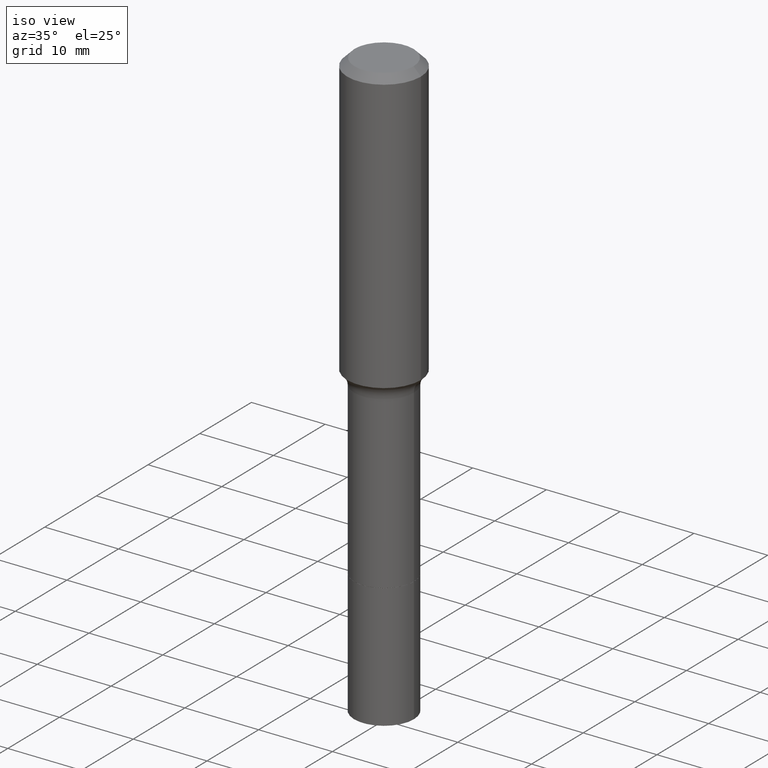
[diagram: clean part render]
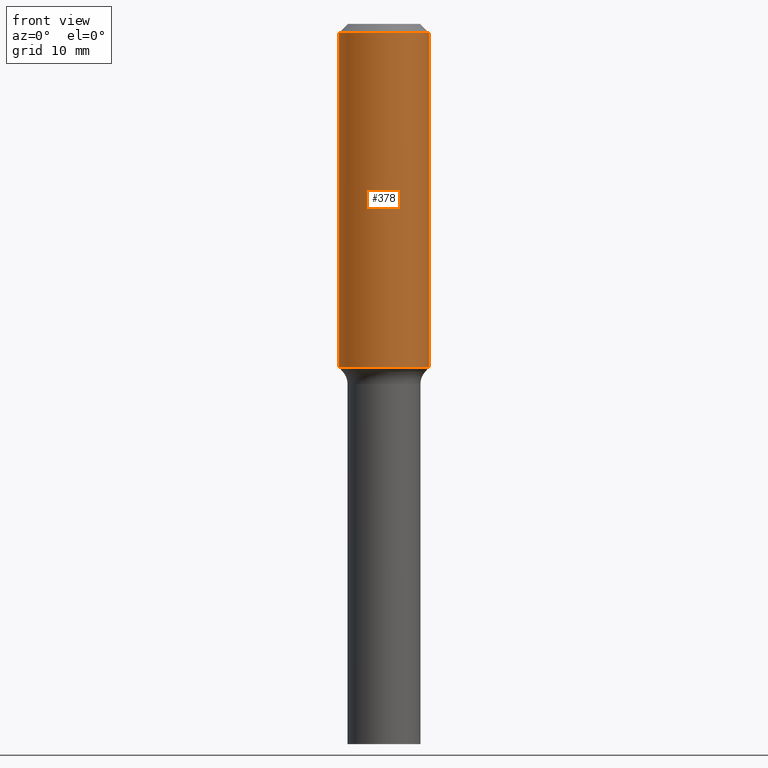
[diagram: tour spotlight — one face highlighted and labeled with its STEP entity id]
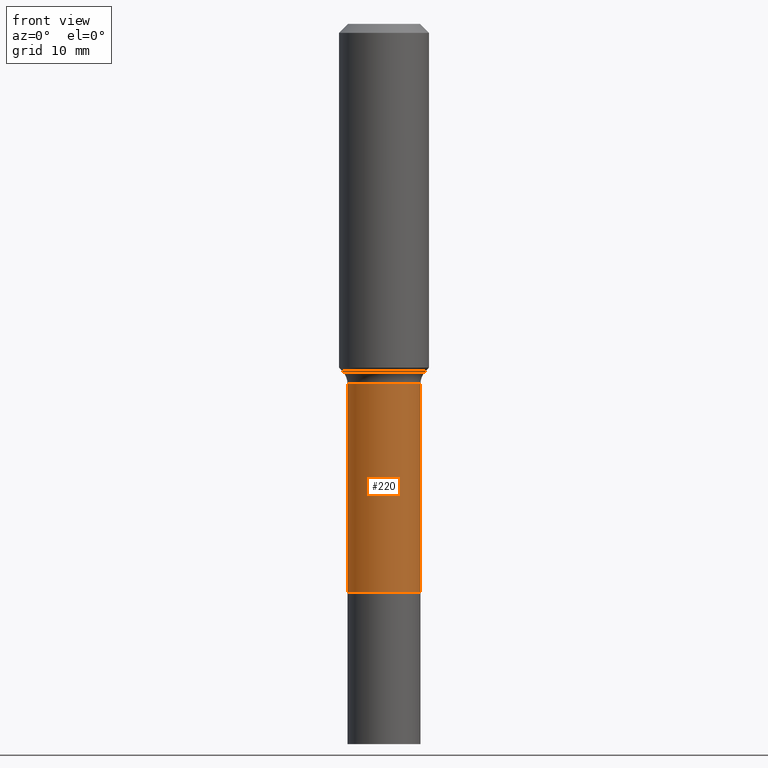
[diagram: tour spotlight — one face highlighted and labeled with its STEP entity id]
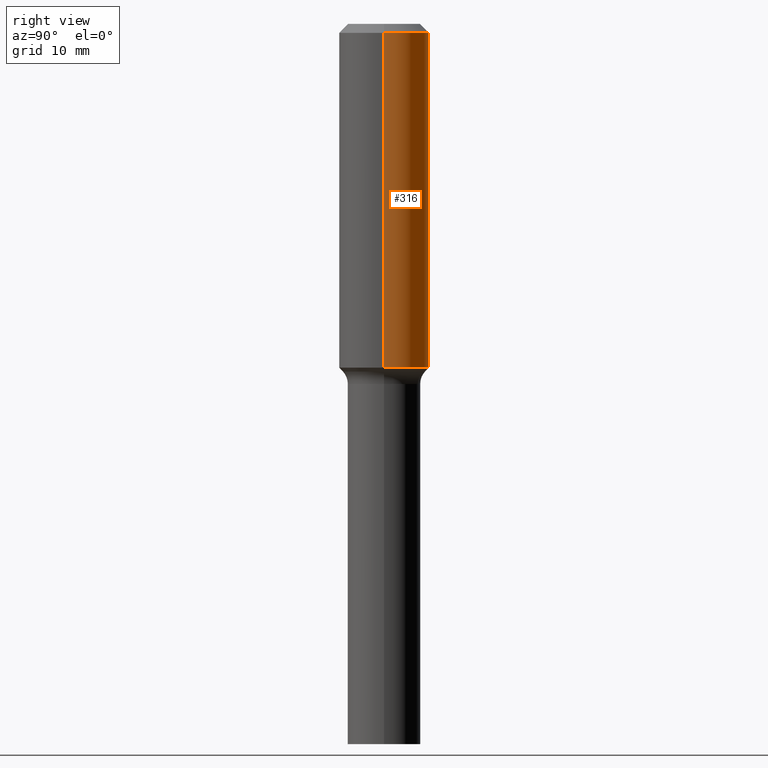
[diagram: tour spotlight — one face highlighted and labeled with its STEP entity id]
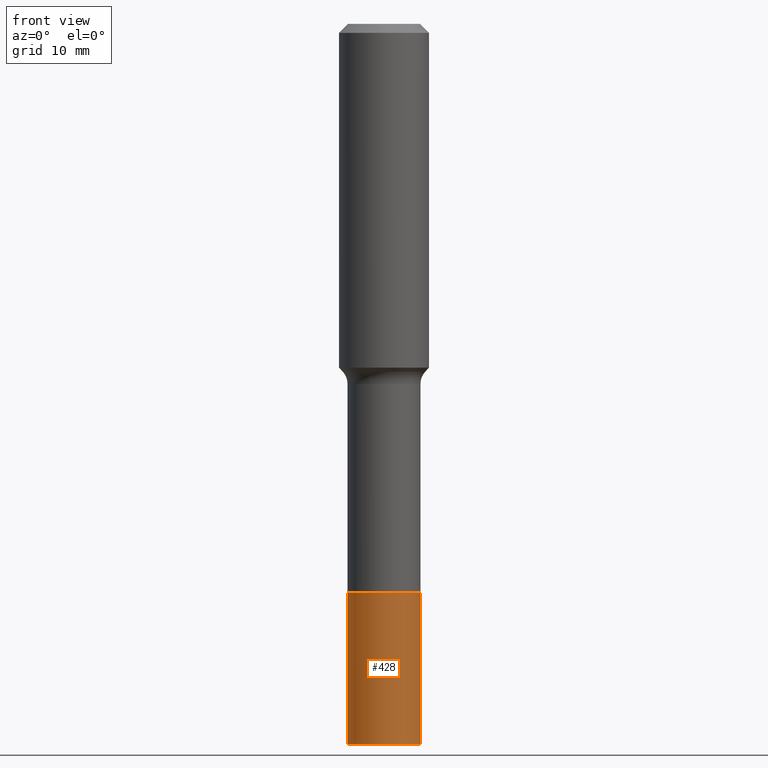
[diagram: tour spotlight — one face highlighted and labeled with its STEP entity id]
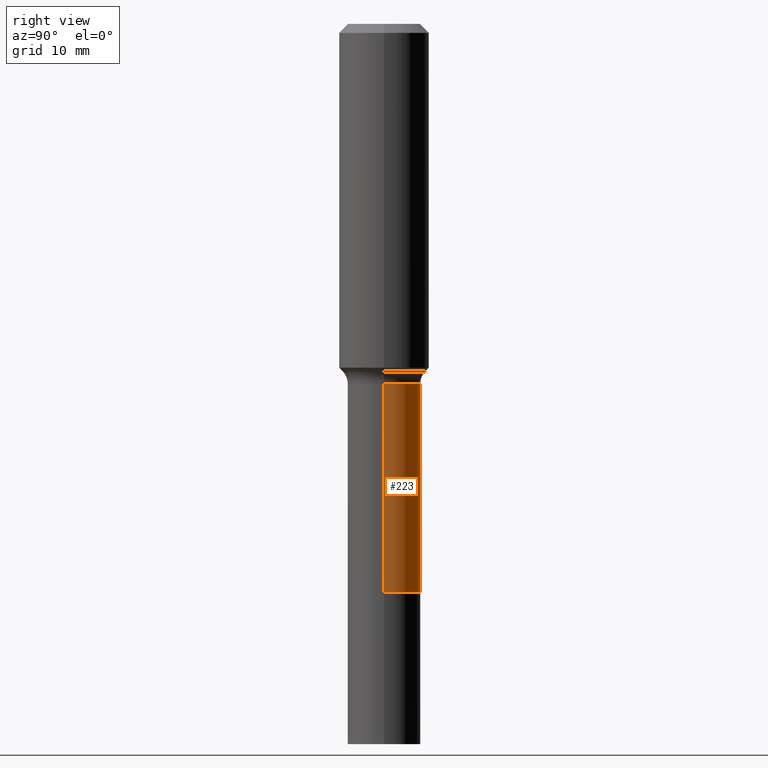
[diagram: tour spotlight — one face highlighted and labeled with its STEP entity id]
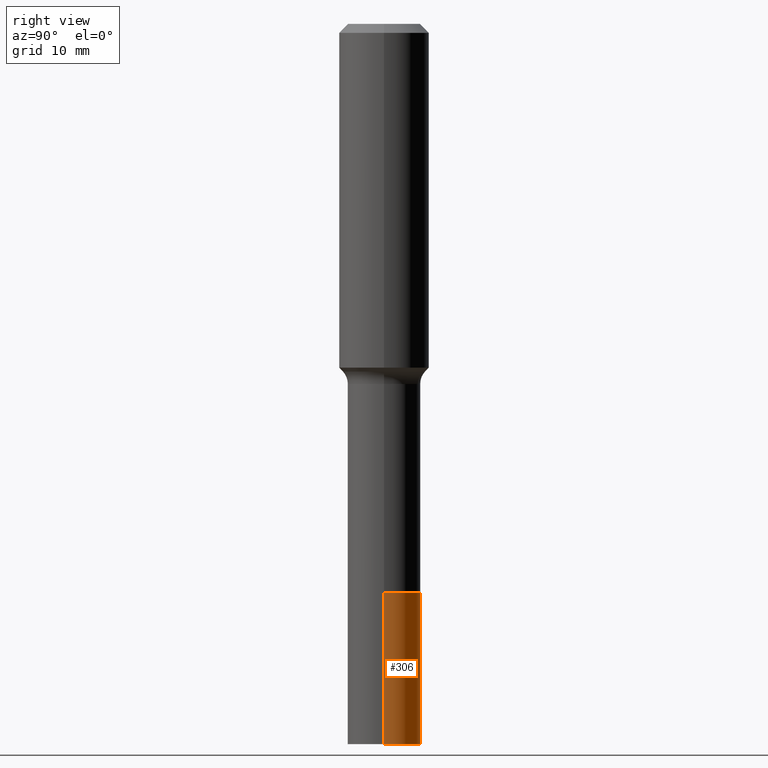
[diagram: tour spotlight — one face highlighted and labeled with its STEP entity id]
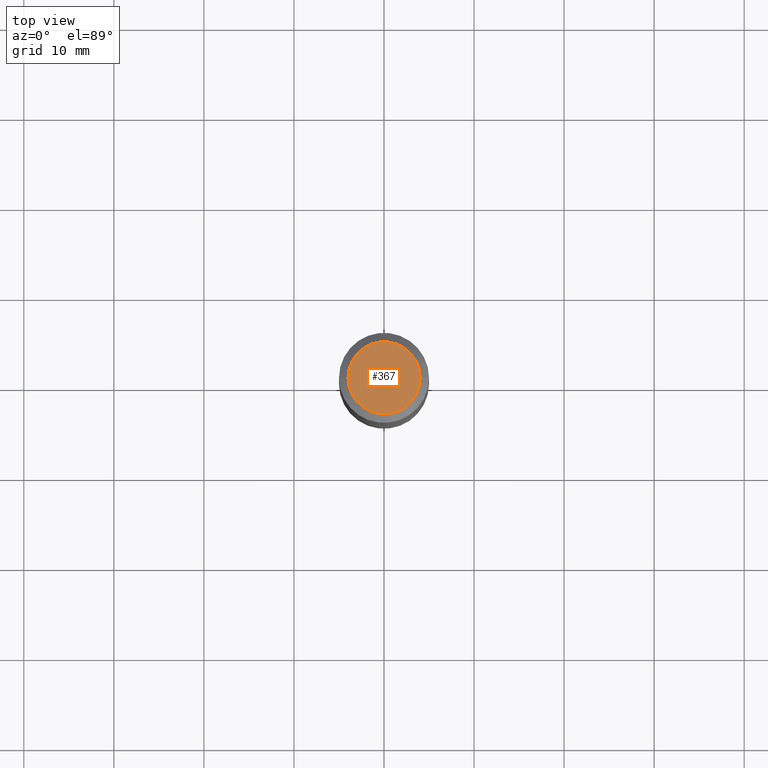
[diagram: tour spotlight — one face highlighted and labeled with its STEP entity id]
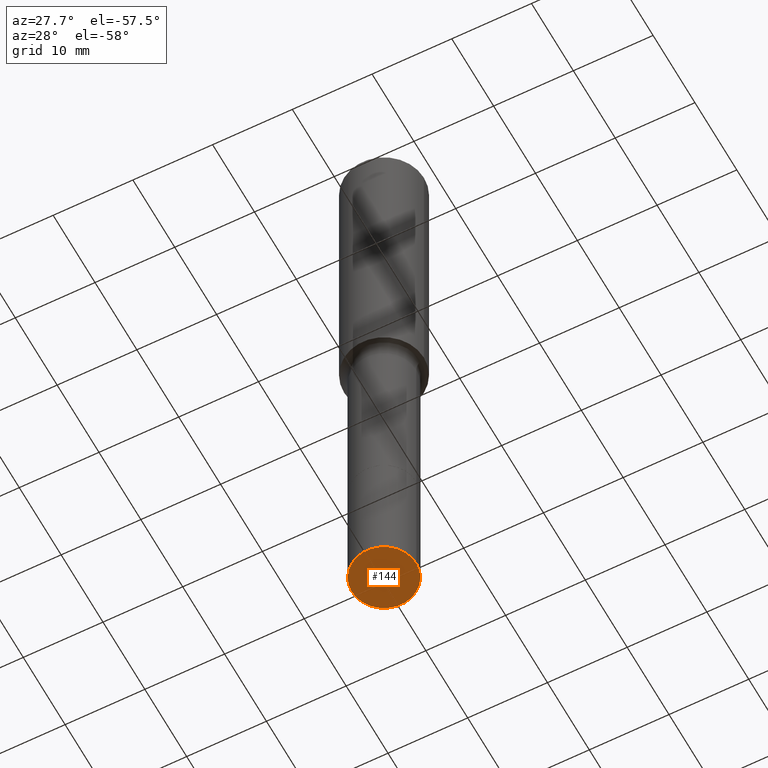
[diagram: tour spotlight — one face highlighted and labeled with its STEP entity id]
A machine part: a face-by-face anatomy tour. The part has 18 B-rep faces; the first image is the clean iso view, then the 8 largest visible faces are spotlighted one at a time (largest first), each with its STEP entity span.

Face 1 — front view, entity #378. In plain terms, the highlighted cylindrical surface (partial cylindrical patch) has radius 5 mm, axis along (-0, 0, 1).
Definition (entity closure, byte-faithful):
#3 = DIRECTION ( 'NONE',  ( 1.000000000000000000, -6.982962677686266711E-15, 0.000000000000000000 ) ) ;
#6 = DIRECTION ( 'NONE',  ( -2.445468806185136597E-29, 3.491481338843145583E-15, 1.000000000000000000 ) ) ;
#29 = DIRECTION ( 'NONE',  ( -2.445468806185136877E-29, 3.491481338843145188E-15, 1.000000000000000000 ) ) ;
#39 = DIRECTION ( 'NONE',  ( -2.445468806185136597E-29, 3.491481338843145583E-15, 1.000000000000000000 ) ) ;
#43 = EDGE_CURVE ( 'NONE', #61, #251, #132, .T. ) ;
#61 = VERTEX_POINT ( 'NONE', #434 ) ;
#66 = CARTESIAN_POINT ( 'NONE',  ( 0.000000000000000000, 0.000000000000000000, 0.000000000000000000 ) ) ;
#82 = LINE ( 'NONE', #108, #286 ) ;
#100 = DIRECTION ( 'NONE',  ( -2.445468806185136597E-29, 3.491481338843145583E-15, 1.000000000000000000 ) ) ;
#105 = DIRECTION ( 'NONE',  ( 1.000000000000000000, -6.982962677686266711E-15, 4.876176775795935793E-29 ) ) ;
#108 = CARTESIAN_POINT ( 'NONE',  ( -0.1968500000000001082, 1.398703375343757985E-15, -9.682923725166787881E-30 ) ) ;
#119 = AXIS2_PLACEMENT_3D ( 'NONE', #397, #39, #442 ) ;
#120 = AXIS2_PLACEMENT_3D ( 'NONE', #481, #6, #3 ) ;
#130 = ORIENTED_EDGE ( 'NONE', *, *, #192, .T. ) ;
#132 = LINE ( 'NONE', #136, #447 ) ;
#136 = CARTESIAN_POINT ( 'NONE',  ( 0.1968500000000001082, -1.374596203102542397E-15, 9.598753983154305062E-30 ) ) ;
#186 = VERTEX_POINT ( 'NONE', #318 ) ;
#189 = EDGE_CURVE ( 'NONE', #213, #186, #82, .T. ) ;
#192 = EDGE_CURVE ( 'NONE', #213, #61, #360, .T. ) ;
#202 = DIRECTION ( 'NONE',  ( -2.445468806185136877E-29, 3.491481338843145188E-15, 1.000000000000000000 ) ) ;
#213 = VERTEX_POINT ( 'NONE', #365 ) ;
#216 = EDGE_LOOP ( 'NONE', ( #497, #130, #500, #371 ) ) ;
#218 = CIRCLE ( 'NONE', #119, 0.1968500000000000250 ) ;
#238 = CYLINDRICAL_SURFACE ( 'NONE', #348, 0.1968500000000001082 ) ;
#251 = VERTEX_POINT ( 'NONE', #449 ) ;
#286 = VECTOR ( 'NONE', #202, 39.37007874015748143 ) ;
#315 = FACE_OUTER_BOUND ( 'NONE', #216, .T. ) ;
#318 = CARTESIAN_POINT ( 'NONE',  ( -0.1968500000000000250, -1.293840745044226107E-15, -0.03937000000000025896 ) ) ;
#348 = AXIS2_PLACEMENT_3D ( 'NONE', #66, #100, #105 ) ;
#360 = CIRCLE ( 'NONE', #120, 0.1968500000000001915 ) ;
#365 = CARTESIAN_POINT ( 'NONE',  ( -0.1968500000000001915, -3.848925245121954815E-15, -1.502980572195881548 ) ) ;
#371 = ORIENTED_EDGE ( 'NONE', *, *, #505, .F. ) ;
#378 = ADVANCED_FACE ( 'NONE', ( #315 ), #238, .T. ) ;
#397 = CARTESIAN_POINT ( 'NONE',  ( 9.627810689950945397E-31, -1.374596203102555315E-16, -0.03937000000000025896 ) ) ;
#434 = CARTESIAN_POINT ( 'NONE',  ( 0.1968500000000001915, -6.622224823568255789E-15, -1.502980572195881548 ) ) ;
#442 = DIRECTION ( 'NONE',  ( 1.000000000000000000, -6.982962677686265922E-15, 0.000000000000000000 ) ) ;
#447 = VECTOR ( 'NONE', #29, 39.37007874015748143 ) ;
#449 = CARTESIAN_POINT ( 'NONE',  ( 0.1968500000000000250, -1.512055823412797189E-15, -0.03937000000000025896 ) ) ;
#481 = CARTESIAN_POINT ( 'NONE',  ( 3.675492105607316008E-29, -5.247628620465713392E-15, -1.502980572195881548 ) ) ;
#497 = ORIENTED_EDGE ( 'NONE', *, *, #189, .F. ) ;
#500 = ORIENTED_EDGE ( 'NONE', *, *, #43, .T. ) ;
#505 = EDGE_CURVE ( 'NONE', #186, #251, #218, .T. ) ;

Face 2 — front view, entity #220. In plain terms, the highlighted cylindrical surface (edge-blend (fillet) strip) has radius 4.05 mm, axis along (-0, 0, 1).
Definition (entity closure, byte-faithful):
#4 = EDGE_CURVE ( 'NONE', #18, #330, #482, .T. ) ;
#13 = CARTESIAN_POINT ( 'NONE',  ( 0.1594500000000000639, -9.790113674116178555E-15, -2.485100000000000087 ) ) ;
#15 = VERTEX_POINT ( 'NONE', #518 ) ;
#16 = LINE ( 'NONE', #374, #241 ) ;
#18 = VERTEX_POINT ( 'NONE', #400 ) ;
#47 = ORIENTED_EDGE ( 'NONE', *, *, #324, .F. ) ;
#68 = DIRECTION ( 'NONE',  ( 1.000000000000000000, -6.982962677686269866E-15, 0.000000000000000000 ) ) ;
#76 = EDGE_CURVE ( 'NONE', #292, #330, #465, .T. ) ;
#91 = VECTOR ( 'NONE', #143, 39.37007874015748143 ) ;
#122 = ORIENTED_EDGE ( 'NONE', *, *, #76, .T. ) ;
#124 = EDGE_LOOP ( 'NONE', ( #47, #377, #122, #381 ) ) ;
#128 = CIRCLE ( 'NONE', #436, 0.1594500000000000639 ) ;
#143 = DIRECTION ( 'NONE',  ( -2.445468806185136877E-29, 3.491481338843145188E-15, 1.000000000000000000 ) ) ;
#159 = CYLINDRICAL_SURFACE ( 'NONE', #219, 0.1594499999999999806 ) ;
#178 = DIRECTION ( 'NONE',  ( -2.445468806185136597E-29, 3.491481338843145583E-15, 1.000000000000000000 ) ) ;
#193 = CARTESIAN_POINT ( 'NONE',  ( 0.1594499999999999806, -1.113433398957075208E-15, 7.775063869006620076E-30 ) ) ;
#205 = FACE_OUTER_BOUND ( 'NONE', #124, .T. ) ;
#219 = AXIS2_PLACEMENT_3D ( 'NONE', #444, #323, #361 ) ;
#220 = ADVANCED_FACE ( 'NONE', ( #205 ), #159, .T. ) ;
#241 = VECTOR ( 'NONE', #494, 39.37007874015748143 ) ;
#292 = VERTEX_POINT ( 'NONE', #13 ) ;
#323 = DIRECTION ( 'NONE',  ( -2.445468806185136597E-29, 3.491481338843145583E-15, 1.000000000000000000 ) ) ;
#324 = EDGE_CURVE ( 'NONE', #15, #18, #16, .T. ) ;
#330 = VERTEX_POINT ( 'NONE', #333 ) ;
#333 = CARTESIAN_POINT ( 'NONE',  ( 0.1594499999999999251, -6.611119915099492761E-15, -1.574600000000000222 ) ) ;
#361 = DIRECTION ( 'NONE',  ( 1.000000000000000000, -6.982962677686267499E-15, 4.876176775795936914E-29 ) ) ;
#374 = CARTESIAN_POINT ( 'NONE',  ( -0.1594499999999999806, 1.132960392169479609E-15, -7.843242001411446535E-30 ) ) ;
#377 = ORIENTED_EDGE ( 'NONE', *, *, #412, .T. ) ;
#381 = ORIENTED_EDGE ( 'NONE', *, *, #4, .F. ) ;
#389 = CARTESIAN_POINT ( 'NONE',  ( 3.850635182219116347E-29, -5.497686516142417553E-15, -1.574600000000000222 ) ) ;
#395 = DIRECTION ( 'NONE',  ( -2.445468806185136597E-29, 3.491481338843145583E-15, 1.000000000000000000 ) ) ;
#400 = CARTESIAN_POINT ( 'NONE',  ( -0.1594499999999999251, -5.954223003481279658E-15, -1.574600000000000222 ) ) ;
#412 = EDGE_CURVE ( 'NONE', #15, #292, #128, .T. ) ;
#436 = AXIS2_PLACEMENT_3D ( 'NONE', #517, #178, #477 ) ;
#438 = AXIS2_PLACEMENT_3D ( 'NONE', #389, #395, #68 ) ;
#444 = CARTESIAN_POINT ( 'NONE',  ( 0.000000000000000000, 0.000000000000000000, 0.000000000000000000 ) ) ;
#465 = LINE ( 'NONE', #193, #91 ) ;
#477 = DIRECTION ( 'NONE',  ( 1.000000000000000000, -6.982962677686269866E-15, 0.000000000000000000 ) ) ;
#482 = CIRCLE ( 'NONE', #438, 0.1594499999999999251 ) ;
#494 = DIRECTION ( 'NONE',  ( -2.445468806185136877E-29, 3.491481338843145188E-15, 1.000000000000000000 ) ) ;
#517 = CARTESIAN_POINT ( 'NONE',  ( 6.077234530250682958E-29, -8.676680275159101770E-15, -2.485100000000000087 ) ) ;
#518 = CARTESIAN_POINT ( 'NONE',  ( -0.1594500000000000639, -5.954223003481278869E-15, -2.485100000000000087 ) ) ;

Face 3 — right view, entity #316. In plain terms, the highlighted cylindrical surface (partial cylindrical patch) has radius 5 mm, axis along (-0, 0, 1).
Definition (entity closure, byte-faithful):
#29 = DIRECTION ( 'NONE',  ( -2.445468806185136877E-29, 3.491481338843145188E-15, 1.000000000000000000 ) ) ;
#42 = DIRECTION ( 'NONE',  ( -2.445468806185136597E-29, 3.491481338843145583E-15, 1.000000000000000000 ) ) ;
#43 = EDGE_CURVE ( 'NONE', #61, #251, #132, .T. ) ;
#52 = CARTESIAN_POINT ( 'NONE',  ( 0.000000000000000000, 0.000000000000000000, 0.000000000000000000 ) ) ;
#53 = DIRECTION ( 'NONE',  ( 1.000000000000000000, -6.982962677686266711E-15, 4.876176775795935793E-29 ) ) ;
#61 = VERTEX_POINT ( 'NONE', #434 ) ;
#82 = LINE ( 'NONE', #108, #286 ) ;
#99 = CARTESIAN_POINT ( 'NONE',  ( 9.627810689950945397E-31, -1.374596203102555315E-16, -0.03937000000000025896 ) ) ;
#108 = CARTESIAN_POINT ( 'NONE',  ( -0.1968500000000001082, 1.398703375343757985E-15, -9.682923725166787881E-30 ) ) ;
#111 = AXIS2_PLACEMENT_3D ( 'NONE', #514, #141, #307 ) ;
#132 = LINE ( 'NONE', #136, #447 ) ;
#136 = CARTESIAN_POINT ( 'NONE',  ( 0.1968500000000001082, -1.374596203102542397E-15, 9.598753983154305062E-30 ) ) ;
#139 = EDGE_CURVE ( 'NONE', #251, #186, #420, .T. ) ;
#141 = DIRECTION ( 'NONE',  ( -2.445468806185136597E-29, 3.491481338843145583E-15, 1.000000000000000000 ) ) ;
#157 = AXIS2_PLACEMENT_3D ( 'NONE', #99, #42, #441 ) ;
#158 = CIRCLE ( 'NONE', #111, 0.1968500000000001915 ) ;
#163 = EDGE_CURVE ( 'NONE', #61, #213, #158, .T. ) ;
#186 = VERTEX_POINT ( 'NONE', #318 ) ;
#189 = EDGE_CURVE ( 'NONE', #213, #186, #82, .T. ) ;
#202 = DIRECTION ( 'NONE',  ( -2.445468806185136877E-29, 3.491481338843145188E-15, 1.000000000000000000 ) ) ;
#213 = VERTEX_POINT ( 'NONE', #365 ) ;
#215 = ORIENTED_EDGE ( 'NONE', *, *, #43, .F. ) ;
#246 = ORIENTED_EDGE ( 'NONE', *, *, #139, .F. ) ;
#249 = CYLINDRICAL_SURFACE ( 'NONE', #340, 0.1968500000000001082 ) ;
#251 = VERTEX_POINT ( 'NONE', #449 ) ;
#286 = VECTOR ( 'NONE', #202, 39.37007874015748143 ) ;
#307 = DIRECTION ( 'NONE',  ( 1.000000000000000000, -6.982962677686266711E-15, 0.000000000000000000 ) ) ;
#316 = ADVANCED_FACE ( 'NONE', ( #453 ), #249, .T. ) ;
#318 = CARTESIAN_POINT ( 'NONE',  ( -0.1968500000000000250, -1.293840745044226107E-15, -0.03937000000000025896 ) ) ;
#329 = DIRECTION ( 'NONE',  ( -2.445468806185136597E-29, 3.491481338843145583E-15, 1.000000000000000000 ) ) ;
#334 = EDGE_LOOP ( 'NONE', ( #472, #342, #246, #215 ) ) ;
#340 = AXIS2_PLACEMENT_3D ( 'NONE', #52, #329, #53 ) ;
#342 = ORIENTED_EDGE ( 'NONE', *, *, #189, .T. ) ;
#365 = CARTESIAN_POINT ( 'NONE',  ( -0.1968500000000001915, -3.848925245121954815E-15, -1.502980572195881548 ) ) ;
#420 = CIRCLE ( 'NONE', #157, 0.1968500000000000250 ) ;
#434 = CARTESIAN_POINT ( 'NONE',  ( 0.1968500000000001915, -6.622224823568255789E-15, -1.502980572195881548 ) ) ;
#441 = DIRECTION ( 'NONE',  ( 1.000000000000000000, -6.982962677686265922E-15, 0.000000000000000000 ) ) ;
#447 = VECTOR ( 'NONE', #29, 39.37007874015748143 ) ;
#449 = CARTESIAN_POINT ( 'NONE',  ( 0.1968500000000000250, -1.512055823412797189E-15, -0.03937000000000025896 ) ) ;
#453 = FACE_OUTER_BOUND ( 'NONE', #334, .T. ) ;
#472 = ORIENTED_EDGE ( 'NONE', *, *, #163, .T. ) ;
#514 = CARTESIAN_POINT ( 'NONE',  ( 3.675492105607316008E-29, -5.247628620465713392E-15, -1.502980572195881548 ) ) ;

Face 4 — front view, entity #428. In plain terms, the highlighted cylindrical surface (edge-blend (fillet) strip) has radius 4.05 mm, axis along (-0, 0, 1).
Definition (entity closure, byte-faithful):
#10 = VECTOR ( 'NONE', #290, 39.37007874015748143 ) ;
#26 = VERTEX_POINT ( 'NONE', #476 ) ;
#33 = DIRECTION ( 'NONE',  ( 1.000000000000000000, -6.982962677686265133E-15, 0.000000000000000000 ) ) ;
#64 = AXIS2_PLACEMENT_3D ( 'NONE', #362, #317, #448 ) ;
#85 = EDGE_LOOP ( 'NONE', ( #260, #298, #485, #462 ) ) ;
#97 = CARTESIAN_POINT ( 'NONE',  ( 6.078457264653775760E-29, -8.678426015828524062E-15, -2.485600000000000254 ) ) ;
#112 = AXIS2_PLACEMENT_3D ( 'NONE', #267, #273, #33 ) ;
#123 = CARTESIAN_POINT ( 'NONE',  ( -0.1594500000000000361, -7.545465623659043664E-15, -2.485600000000000254 ) ) ;
#133 = CARTESIAN_POINT ( 'NONE',  ( 0.1594500000000000361, -9.791859414785599270E-15, -2.485600000000000254 ) ) ;
#142 = FACE_OUTER_BOUND ( 'NONE', #85, .T. ) ;
#152 = CARTESIAN_POINT ( 'NONE',  ( 0.1594500000000000361, -9.791859414785599270E-15, -2.485600000000000254 ) ) ;
#168 = LINE ( 'NONE', #123, #10 ) ;
#172 = EDGE_CURVE ( 'NONE', #460, #463, #461, .T. ) ;
#181 = VERTEX_POINT ( 'NONE', #152 ) ;
#187 = DIRECTION ( 'NONE',  ( -2.445468806185136877E-29, 3.491481338843145188E-15, 1.000000000000000000 ) ) ;
#197 = CIRCLE ( 'NONE', #511, 0.1594500000000000361 ) ;
#260 = ORIENTED_EDGE ( 'NONE', *, *, #346, .F. ) ;
#265 = LINE ( 'NONE', #133, #483 ) ;
#267 = CARTESIAN_POINT ( 'NONE',  ( 6.078457264653775760E-29, -8.678426015828524062E-15, -2.485600000000000254 ) ) ;
#273 = DIRECTION ( 'NONE',  ( -2.445468806185136597E-29, 3.491481338843145583E-15, 1.000000000000000000 ) ) ;
#290 = DIRECTION ( 'NONE',  ( -2.445468806185136877E-29, 3.491481338843145188E-15, 1.000000000000000000 ) ) ;
#298 = ORIENTED_EDGE ( 'NONE', *, *, #172, .T. ) ;
#305 = DIRECTION ( 'NONE',  ( -2.445468806185136597E-29, 3.491481338843145583E-15, 1.000000000000000000 ) ) ;
#311 = CYLINDRICAL_SURFACE ( 'NONE', #112, 0.1594500000000000361 ) ;
#317 = DIRECTION ( 'NONE',  ( -2.445468806185136597E-29, 3.491481338843145583E-15, 1.000000000000000000 ) ) ;
#346 = EDGE_CURVE ( 'NONE', #460, #26, #168, .T. ) ;
#362 = CARTESIAN_POINT ( 'NONE',  ( 7.702248551960706711E-29, -1.099676962482037231E-14, -3.149600000000000399 ) ) ;
#399 = DIRECTION ( 'NONE',  ( 1.000000000000000000, -6.982962677686265133E-15, 0.000000000000000000 ) ) ;
#428 = ADVANCED_FACE ( 'NONE', ( #142 ), #311, .T. ) ;
#440 = EDGE_CURVE ( 'NONE', #26, #181, #197, .T. ) ;
#448 = DIRECTION ( 'NONE',  ( 1.000000000000000000, -6.982962677686265133E-15, 0.000000000000000000 ) ) ;
#460 = VERTEX_POINT ( 'NONE', #509 ) ;
#461 = CIRCLE ( 'NONE', #64, 0.1594500000000000361 ) ;
#462 = ORIENTED_EDGE ( 'NONE', *, *, #440, .F. ) ;
#463 = VERTEX_POINT ( 'NONE', #473 ) ;
#473 = CARTESIAN_POINT ( 'NONE',  ( 0.1594500000000000361, -1.211020302377744752E-14, -3.149600000000000399 ) ) ;
#476 = CARTESIAN_POINT ( 'NONE',  ( -0.1594500000000000361, -8.704637428154966210E-15, -2.485600000000000254 ) ) ;
#480 = EDGE_CURVE ( 'NONE', #463, #181, #265, .T. ) ;
#483 = VECTOR ( 'NONE', #187, 39.37007874015748143 ) ;
#485 = ORIENTED_EDGE ( 'NONE', *, *, #480, .T. ) ;
#509 = CARTESIAN_POINT ( 'NONE',  ( -0.1594500000000000361, -8.704637428154966210E-15, -3.149600000000000399 ) ) ;
#511 = AXIS2_PLACEMENT_3D ( 'NONE', #97, #305, #399 ) ;

Face 5 — right view, entity #223. In plain terms, the highlighted cylindrical surface (edge-blend (fillet) strip) has radius 4.05 mm, axis along (-0, 0, 1).
Definition (entity closure, byte-faithful):
#13 = CARTESIAN_POINT ( 'NONE',  ( 0.1594500000000000639, -9.790113674116178555E-15, -2.485100000000000087 ) ) ;
#15 = VERTEX_POINT ( 'NONE', #518 ) ;
#16 = LINE ( 'NONE', #374, #241 ) ;
#18 = VERTEX_POINT ( 'NONE', #400 ) ;
#25 = ORIENTED_EDGE ( 'NONE', *, *, #36, .F. ) ;
#36 = EDGE_CURVE ( 'NONE', #330, #18, #56, .T. ) ;
#38 = CARTESIAN_POINT ( 'NONE',  ( 3.850635182219116347E-29, -5.497686516142417553E-15, -1.574600000000000222 ) ) ;
#50 = DIRECTION ( 'NONE',  ( 1.000000000000000000, -6.982962677686269866E-15, 0.000000000000000000 ) ) ;
#51 = ORIENTED_EDGE ( 'NONE', *, *, #76, .F. ) ;
#56 = CIRCLE ( 'NONE', #138, 0.1594499999999999251 ) ;
#58 = ORIENTED_EDGE ( 'NONE', *, *, #274, .T. ) ;
#76 = EDGE_CURVE ( 'NONE', #292, #330, #465, .T. ) ;
#84 = CARTESIAN_POINT ( 'NONE',  ( 0.000000000000000000, 0.000000000000000000, 0.000000000000000000 ) ) ;
#91 = VECTOR ( 'NONE', #143, 39.37007874015748143 ) ;
#110 = DIRECTION ( 'NONE',  ( -2.445468806185136597E-29, 3.491481338843145583E-15, 1.000000000000000000 ) ) ;
#138 = AXIS2_PLACEMENT_3D ( 'NONE', #38, #269, #437 ) ;
#143 = DIRECTION ( 'NONE',  ( -2.445468806185136877E-29, 3.491481338843145188E-15, 1.000000000000000000 ) ) ;
#148 = AXIS2_PLACEMENT_3D ( 'NONE', #84, #278, #486 ) ;
#160 = ORIENTED_EDGE ( 'NONE', *, *, #324, .T. ) ;
#171 = EDGE_LOOP ( 'NONE', ( #58, #160, #25, #51 ) ) ;
#193 = CARTESIAN_POINT ( 'NONE',  ( 0.1594499999999999806, -1.113433398957075208E-15, 7.775063869006620076E-30 ) ) ;
#223 = ADVANCED_FACE ( 'NONE', ( #413 ), #242, .T. ) ;
#241 = VECTOR ( 'NONE', #494, 39.37007874015748143 ) ;
#242 = CYLINDRICAL_SURFACE ( 'NONE', #148, 0.1594499999999999806 ) ;
#269 = DIRECTION ( 'NONE',  ( -2.445468806185136597E-29, 3.491481338843145583E-15, 1.000000000000000000 ) ) ;
#274 = EDGE_CURVE ( 'NONE', #292, #15, #291, .T. ) ;
#278 = DIRECTION ( 'NONE',  ( -2.445468806185136597E-29, 3.491481338843145583E-15, 1.000000000000000000 ) ) ;
#291 = CIRCLE ( 'NONE', #364, 0.1594500000000000639 ) ;
#292 = VERTEX_POINT ( 'NONE', #13 ) ;
#324 = EDGE_CURVE ( 'NONE', #15, #18, #16, .T. ) ;
#330 = VERTEX_POINT ( 'NONE', #333 ) ;
#333 = CARTESIAN_POINT ( 'NONE',  ( 0.1594499999999999251, -6.611119915099492761E-15, -1.574600000000000222 ) ) ;
#364 = AXIS2_PLACEMENT_3D ( 'NONE', #403, #110, #50 ) ;
#374 = CARTESIAN_POINT ( 'NONE',  ( -0.1594499999999999806, 1.132960392169479609E-15, -7.843242001411446535E-30 ) ) ;
#400 = CARTESIAN_POINT ( 'NONE',  ( -0.1594499999999999251, -5.954223003481279658E-15, -1.574600000000000222 ) ) ;
#403 = CARTESIAN_POINT ( 'NONE',  ( 6.077234530250682958E-29, -8.676680275159101770E-15, -2.485100000000000087 ) ) ;
#413 = FACE_OUTER_BOUND ( 'NONE', #171, .T. ) ;
#437 = DIRECTION ( 'NONE',  ( 1.000000000000000000, -6.982962677686269866E-15, 0.000000000000000000 ) ) ;
#465 = LINE ( 'NONE', #193, #91 ) ;
#486 = DIRECTION ( 'NONE',  ( 1.000000000000000000, -6.982962677686267499E-15, 4.876176775795936914E-29 ) ) ;
#494 = DIRECTION ( 'NONE',  ( -2.445468806185136877E-29, 3.491481338843145188E-15, 1.000000000000000000 ) ) ;
#518 = CARTESIAN_POINT ( 'NONE',  ( -0.1594500000000000639, -5.954223003481278869E-15, -2.485100000000000087 ) ) ;

Face 6 — right view, entity #306. In plain terms, the highlighted cylindrical surface (edge-blend (fillet) strip) has radius 4.05 mm, axis along (-0, 0, 1).
Definition (entity closure, byte-faithful):
#2 = CIRCLE ( 'NONE', #409, 0.1594500000000000361 ) ;
#10 = VECTOR ( 'NONE', #290, 39.37007874015748143 ) ;
#26 = VERTEX_POINT ( 'NONE', #476 ) ;
#102 = CARTESIAN_POINT ( 'NONE',  ( 6.078457264653775760E-29, -8.678426015828524062E-15, -2.485600000000000254 ) ) ;
#113 = FACE_OUTER_BOUND ( 'NONE', #156, .T. ) ;
#117 = DIRECTION ( 'NONE',  ( -2.445468806185136597E-29, 3.491481338843145583E-15, 1.000000000000000000 ) ) ;
#123 = CARTESIAN_POINT ( 'NONE',  ( -0.1594500000000000361, -7.545465623659043664E-15, -2.485600000000000254 ) ) ;
#133 = CARTESIAN_POINT ( 'NONE',  ( 0.1594500000000000361, -9.791859414785599270E-15, -2.485600000000000254 ) ) ;
#147 = CARTESIAN_POINT ( 'NONE',  ( 7.702248551960706711E-29, -1.099676962482037231E-14, -3.149600000000000399 ) ) ;
#152 = CARTESIAN_POINT ( 'NONE',  ( 0.1594500000000000361, -9.791859414785599270E-15, -2.485600000000000254 ) ) ;
#156 = EDGE_LOOP ( 'NONE', ( #495, #327, #470, #499 ) ) ;
#168 = LINE ( 'NONE', #123, #10 ) ;
#181 = VERTEX_POINT ( 'NONE', #152 ) ;
#187 = DIRECTION ( 'NONE',  ( -2.445468806185136877E-29, 3.491481338843145188E-15, 1.000000000000000000 ) ) ;
#262 = DIRECTION ( 'NONE',  ( -2.445468806185136597E-29, 3.491481338843145583E-15, 1.000000000000000000 ) ) ;
#265 = LINE ( 'NONE', #133, #483 ) ;
#283 = DIRECTION ( 'NONE',  ( 1.000000000000000000, -6.982962677686265133E-15, 0.000000000000000000 ) ) ;
#290 = DIRECTION ( 'NONE',  ( -2.445468806185136877E-29, 3.491481338843145188E-15, 1.000000000000000000 ) ) ;
#306 = ADVANCED_FACE ( 'NONE', ( #113 ), #326, .T. ) ;
#326 = CYLINDRICAL_SURFACE ( 'NONE', #510, 0.1594500000000000361 ) ;
#327 = ORIENTED_EDGE ( 'NONE', *, *, #346, .T. ) ;
#331 = CIRCLE ( 'NONE', #369, 0.1594500000000000361 ) ;
#343 = DIRECTION ( 'NONE',  ( 1.000000000000000000, -6.982962677686265133E-15, 0.000000000000000000 ) ) ;
#346 = EDGE_CURVE ( 'NONE', #460, #26, #168, .T. ) ;
#369 = AXIS2_PLACEMENT_3D ( 'NONE', #102, #431, #515 ) ;
#373 = EDGE_CURVE ( 'NONE', #181, #26, #331, .T. ) ;
#386 = EDGE_CURVE ( 'NONE', #463, #460, #2, .T. ) ;
#409 = AXIS2_PLACEMENT_3D ( 'NONE', #147, #262, #343 ) ;
#431 = DIRECTION ( 'NONE',  ( -2.445468806185136597E-29, 3.491481338843145583E-15, 1.000000000000000000 ) ) ;
#460 = VERTEX_POINT ( 'NONE', #509 ) ;
#463 = VERTEX_POINT ( 'NONE', #473 ) ;
#470 = ORIENTED_EDGE ( 'NONE', *, *, #373, .F. ) ;
#473 = CARTESIAN_POINT ( 'NONE',  ( 0.1594500000000000361, -1.211020302377744752E-14, -3.149600000000000399 ) ) ;
#476 = CARTESIAN_POINT ( 'NONE',  ( -0.1594500000000000361, -8.704637428154966210E-15, -2.485600000000000254 ) ) ;
#480 = EDGE_CURVE ( 'NONE', #463, #181, #265, .T. ) ;
#483 = VECTOR ( 'NONE', #187, 39.37007874015748143 ) ;
#488 = CARTESIAN_POINT ( 'NONE',  ( 6.078457264653775760E-29, -8.678426015828524062E-15, -2.485600000000000254 ) ) ;
#495 = ORIENTED_EDGE ( 'NONE', *, *, #386, .T. ) ;
#499 = ORIENTED_EDGE ( 'NONE', *, *, #480, .F. ) ;
#509 = CARTESIAN_POINT ( 'NONE',  ( -0.1594500000000000361, -8.704637428154966210E-15, -3.149600000000000399 ) ) ;
#510 = AXIS2_PLACEMENT_3D ( 'NONE', #488, #117, #283 ) ;
#515 = DIRECTION ( 'NONE',  ( 1.000000000000000000, -6.982962677686265133E-15, 0.000000000000000000 ) ) ;

Face 7 — top view, entity #367. In plain terms, the highlighted planar face has unit normal (0, -0, -1).
Definition (entity closure, byte-faithful):
#8 = ORIENTED_EDGE ( 'NONE', *, *, #487, .T. ) ;
#9 = AXIS2_PLACEMENT_3D ( 'NONE', #69, #435, #391 ) ;
#14 = FACE_OUTER_BOUND ( 'NONE', #353, .T. ) ;
#35 = CIRCLE ( 'NONE', #9, 0.1574800000000000089 ) ;
#62 = AXIS2_PLACEMENT_3D ( 'NONE', #414, #354, #352 ) ;
#69 = CARTESIAN_POINT ( 'NONE',  ( -9.427742298522567634E-47, 1.346031739168368355E-32, 3.855188123715870730E-18 ) ) ;
#225 = AXIS2_PLACEMENT_3D ( 'NONE', #239, #405, #245 ) ;
#239 = CARTESIAN_POINT ( 'NONE',  ( -9.427742298522567634E-47, 1.346031739168368355E-32, 3.855188123715870730E-18 ) ) ;
#245 = DIRECTION ( 'NONE',  ( 1.000000000000000000, -6.982962677686265922E-15, 4.876223630392693006E-29 ) ) ;
#250 = PLANE ( 'NONE',  #62 ) ;
#259 = EDGE_CURVE ( 'NONE', #296, #410, #457, .T. ) ;
#296 = VERTEX_POINT ( 'NONE', #408 ) ;
#352 = DIRECTION ( 'NONE',  ( -1.000000000000000000, 6.982962677686265922E-15, -4.876176775795935793E-29 ) ) ;
#353 = EDGE_LOOP ( 'NONE', ( #8, #418 ) ) ;
#354 = DIRECTION ( 'NONE',  ( 2.438088387897960049E-29, -3.491481338843145188E-15, -1.000000000000000000 ) ) ;
#367 = ADVANCED_FACE ( 'NONE', ( #14 ), #250, .F. ) ;
#391 = DIRECTION ( 'NONE',  ( 1.000000000000000000, -6.982962677686265922E-15, 4.876223630392693006E-29 ) ) ;
#401 = CARTESIAN_POINT ( 'NONE',  ( -0.1574800000000000089, 1.168406772637159618E-15, 3.855188123707939751E-18 ) ) ;
#405 = DIRECTION ( 'NONE',  ( -2.445468806185136597E-29, 3.491481338843145583E-15, 1.000000000000000000 ) ) ;
#408 = CARTESIAN_POINT ( 'NONE',  ( 0.1574800000000000089, -1.284169937930321189E-15, 3.855188123724205385E-18 ) ) ;
#410 = VERTEX_POINT ( 'NONE', #401 ) ;
#414 = CARTESIAN_POINT ( 'NONE',  ( -4.713871149261283817E-47, 6.730158695841841775E-33, 1.927594061857935365E-18 ) ) ;
#418 = ORIENTED_EDGE ( 'NONE', *, *, #259, .T. ) ;
#435 = DIRECTION ( 'NONE',  ( -2.445468806185136597E-29, 3.491481338843145583E-15, 1.000000000000000000 ) ) ;
#457 = CIRCLE ( 'NONE', #225, 0.1574800000000000089 ) ;
#487 = EDGE_CURVE ( 'NONE', #410, #296, #35, .T. ) ;

Face 8 — auxiliary view, entity #144. In plain terms, the highlighted planar face has unit normal (0, -0, -1).
Definition (entity closure, byte-faithful):
#2 = CIRCLE ( 'NONE', #409, 0.1594500000000000361 ) ;
#64 = AXIS2_PLACEMENT_3D ( 'NONE', #362, #317, #448 ) ;
#77 = DIRECTION ( 'NONE',  ( 2.438088387897960049E-29, -3.491481338843145188E-15, -1.000000000000000000 ) ) ;
#144 = ADVANCED_FACE ( 'NONE', ( #227 ), #261, .T. ) ;
#147 = CARTESIAN_POINT ( 'NONE',  ( 7.702248551960706711E-29, -1.099676962482037231E-14, -3.149600000000000399 ) ) ;
#172 = EDGE_CURVE ( 'NONE', #460, #463, #461, .T. ) ;
#188 = AXIS2_PLACEMENT_3D ( 'NONE', #430, #77, #264 ) ;
#227 = FACE_OUTER_BOUND ( 'NONE', #424, .T. ) ;
#261 = PLANE ( 'NONE',  #188 ) ;
#262 = DIRECTION ( 'NONE',  ( -2.445468806185136597E-29, 3.491481338843145583E-15, 1.000000000000000000 ) ) ;
#264 = DIRECTION ( 'NONE',  ( -1.000000000000000000, 6.982962677686265922E-15, -4.876176775795935793E-29 ) ) ;
#317 = DIRECTION ( 'NONE',  ( -2.445468806185136597E-29, 3.491481338843145583E-15, 1.000000000000000000 ) ) ;
#343 = DIRECTION ( 'NONE',  ( 1.000000000000000000, -6.982962677686265133E-15, 0.000000000000000000 ) ) ;
#362 = CARTESIAN_POINT ( 'NONE',  ( 7.702248551960706711E-29, -1.099676962482037231E-14, -3.149600000000000399 ) ) ;
#386 = EDGE_CURVE ( 'NONE', #463, #460, #2, .T. ) ;
#409 = AXIS2_PLACEMENT_3D ( 'NONE', #147, #262, #343 ) ;
#416 = ORIENTED_EDGE ( 'NONE', *, *, #172, .F. ) ;
#422 = ORIENTED_EDGE ( 'NONE', *, *, #386, .F. ) ;
#424 = EDGE_LOOP ( 'NONE', ( #422, #416 ) ) ;
#430 = CARTESIAN_POINT ( 'NONE',  ( 7.702248551960706711E-29, -1.099676962482037231E-14, -3.149600000000000399 ) ) ;
#448 = DIRECTION ( 'NONE',  ( 1.000000000000000000, -6.982962677686265133E-15, 0.000000000000000000 ) ) ;
#460 = VERTEX_POINT ( 'NONE', #509 ) ;
#461 = CIRCLE ( 'NONE', #64, 0.1594500000000000361 ) ;
#463 = VERTEX_POINT ( 'NONE', #473 ) ;
#473 = CARTESIAN_POINT ( 'NONE',  ( 0.1594500000000000361, -1.211020302377744752E-14, -3.149600000000000399 ) ) ;
#509 = CARTESIAN_POINT ( 'NONE',  ( -0.1594500000000000361, -8.704637428154966210E-15, -3.149600000000000399 ) ) ;